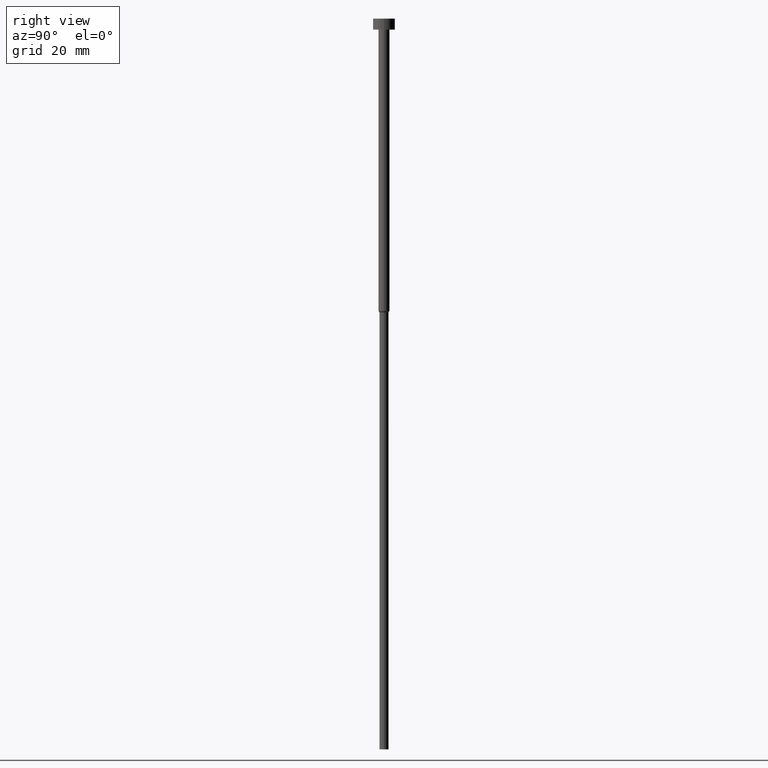
[diagram: clean part render]
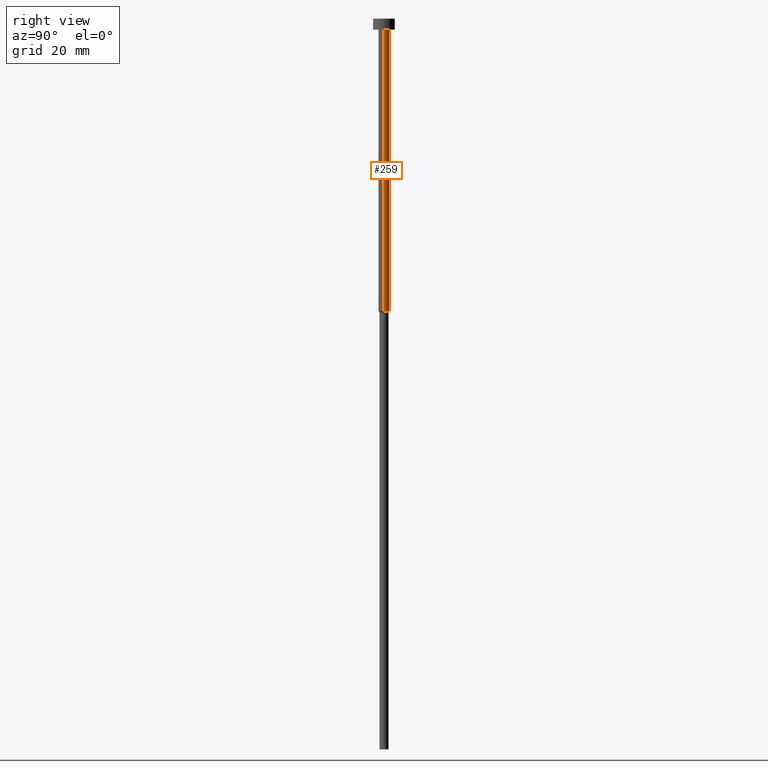
[diagram: same view with one face highlighted and labeled with its STEP entity id]
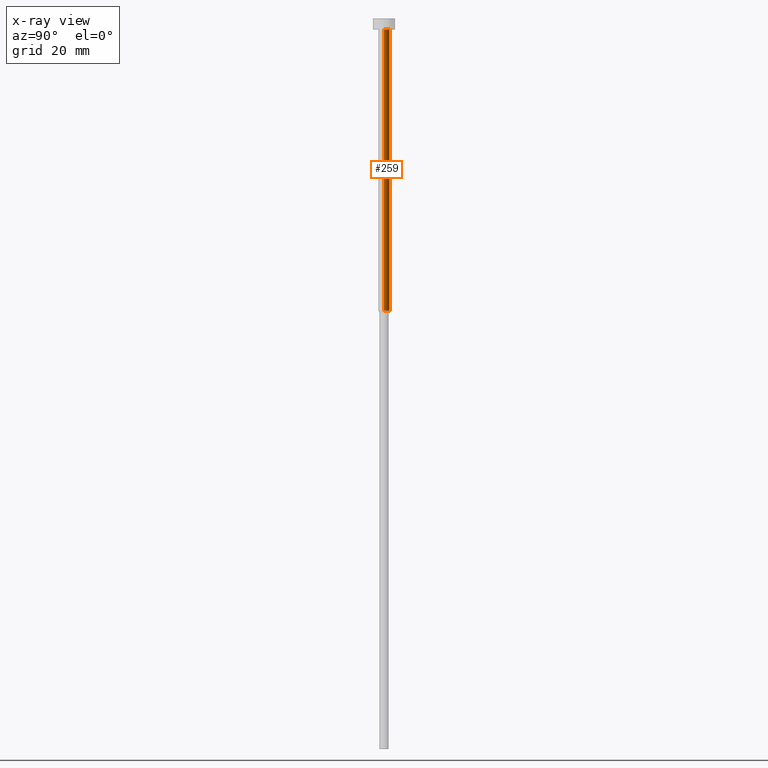
[diagram: x-ray of the same camera — body ghosted, the highlighted face saturated]
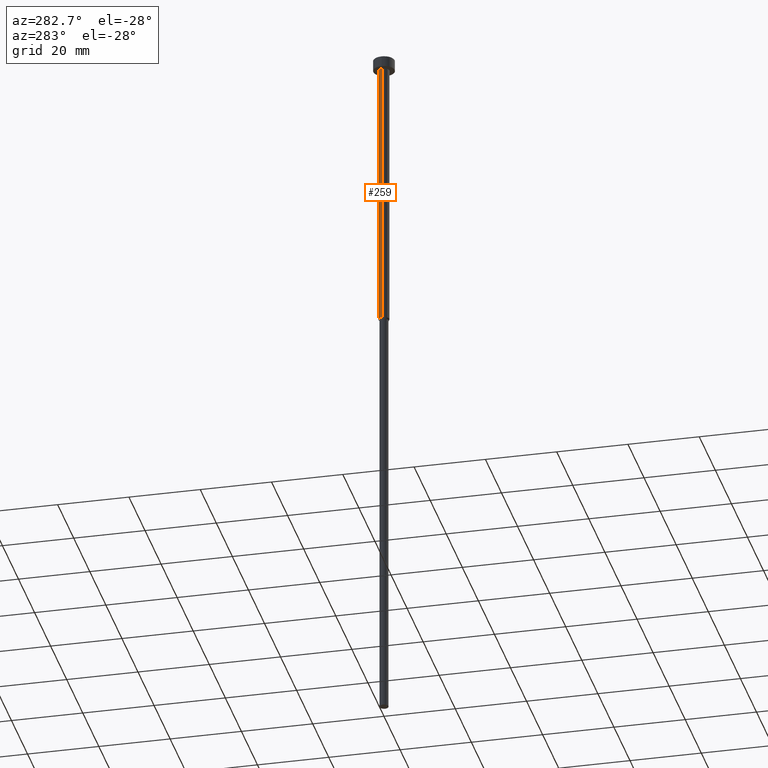
[diagram: same view with one face highlighted and labeled with its STEP entity id]
A machine part, right view. The second image highlights one B-rep face of the part: STEP entity #259.
The next image is the same camera in x-ray: the body ghosted, the highlighted face saturated — about 0% of this face is hidden behind the body in this view.
A second angle (auxiliary view) of the same face is appended — the face is thin or edge-on in the first view.
In plain terms, the highlighted cylindrical surface (edge-blend (fillet) strip) has radius 1.5 mm, axis along (-0, -0, 1).
Its self-contained STEP definition (entity closure, byte-faithful):
#1 = CARTESIAN_POINT ( 'NONE',  ( 1.500000000000000000, 0.000000000000000000, -3.000000000000000888 ) ) ;
#8 = CIRCLE ( 'NONE', #336, 1.500000000000000000 ) ;
#41 = DIRECTION ( 'NONE',  ( 1.000000000000000000, 0.000000000000000000, 0.000000000000000000 ) ) ;
#42 = ORIENTED_EDGE ( 'NONE', *, *, #286, .F. ) ;
#55 = DIRECTION ( 'NONE',  ( -0.000000000000000000, -0.000000000000000000, 1.000000000000000000 ) ) ;
#60 = VERTEX_POINT ( 'NONE', #150 ) ;
#62 = VERTEX_POINT ( 'NONE', #314 ) ;
#64 = EDGE_CURVE ( 'NONE', #255, #62, #260, .T. ) ;
#74 = CARTESIAN_POINT ( 'NONE',  ( 0.000000000000000000, 0.000000000000000000, -3.000000000000000888 ) ) ;
#82 = DIRECTION ( 'NONE',  ( -0.000000000000000000, -0.000000000000000000, 1.000000000000000000 ) ) ;
#87 = VECTOR ( 'NONE', #82, 1000.000000000000000 ) ;
#95 = EDGE_LOOP ( 'NONE', ( #279, #119, #231, #42 ) ) ;
#110 = LINE ( 'NONE', #226, #87 ) ;
#119 = ORIENTED_EDGE ( 'NONE', *, *, #64, .T. ) ;
#139 = FACE_OUTER_BOUND ( 'NONE', #95, .T. ) ;
#144 = CIRCLE ( 'NONE', #325, 1.500000000000000000 ) ;
#150 = CARTESIAN_POINT ( 'NONE',  ( 1.500000000000000000, 0.000000000000000000, -80.00000000000000000 ) ) ;
#188 = DIRECTION ( 'NONE',  ( 1.000000000000000000, 0.000000000000000000, 0.000000000000000000 ) ) ;
#195 = CYLINDRICAL_SURFACE ( 'NONE', #288, 1.500000000000000000 ) ;
#216 = CARTESIAN_POINT ( 'NONE',  ( 0.000000000000000000, 0.000000000000000000, -80.00000000000000000 ) ) ;
#221 = EDGE_CURVE ( 'NONE', #242, #62, #144, .T. ) ;
#222 = CARTESIAN_POINT ( 'NONE',  ( -1.500000000000000000, 1.836970198721029934E-16, -80.00000000000000000 ) ) ;
#226 = CARTESIAN_POINT ( 'NONE',  ( 1.500000000000000000, 0.000000000000000000, 0.000000000000000000 ) ) ;
#231 = ORIENTED_EDGE ( 'NONE', *, *, #221, .F. ) ;
#242 = VERTEX_POINT ( 'NONE', #1 ) ;
#246 = CARTESIAN_POINT ( 'NONE',  ( -1.500000000000000000, 1.836970198721029934E-16, 0.000000000000000000 ) ) ;
#255 = VERTEX_POINT ( 'NONE', #222 ) ;
#259 = ADVANCED_FACE ( 'NONE', ( #139 ), #195, .T. ) ;
#260 = LINE ( 'NONE', #246, #290 ) ;
#271 = CARTESIAN_POINT ( 'NONE',  ( 0.000000000000000000, 0.000000000000000000, 0.000000000000000000 ) ) ;
#279 = ORIENTED_EDGE ( 'NONE', *, *, #337, .T. ) ;
#286 = EDGE_CURVE ( 'NONE', #60, #242, #110, .T. ) ;
#288 = AXIS2_PLACEMENT_3D ( 'NONE', #271, #327, #353 ) ;
#290 = VECTOR ( 'NONE', #343, 1000.000000000000000 ) ;
#314 = CARTESIAN_POINT ( 'NONE',  ( -1.500000000000000000, 1.836970198721029934E-16, -3.000000000000000888 ) ) ;
#325 = AXIS2_PLACEMENT_3D ( 'NONE', #74, #55, #188 ) ;
#327 = DIRECTION ( 'NONE',  ( -0.000000000000000000, -0.000000000000000000, 1.000000000000000000 ) ) ;
#336 = AXIS2_PLACEMENT_3D ( 'NONE', #216, #350, #41 ) ;
#337 = EDGE_CURVE ( 'NONE', #60, #255, #8, .T. ) ;
#343 = DIRECTION ( 'NONE',  ( -0.000000000000000000, -0.000000000000000000, 1.000000000000000000 ) ) ;
#350 = DIRECTION ( 'NONE',  ( -0.000000000000000000, -0.000000000000000000, 1.000000000000000000 ) ) ;
#353 = DIRECTION ( 'NONE',  ( 1.000000000000000000, 0.000000000000000000, 0.000000000000000000 ) ) ;